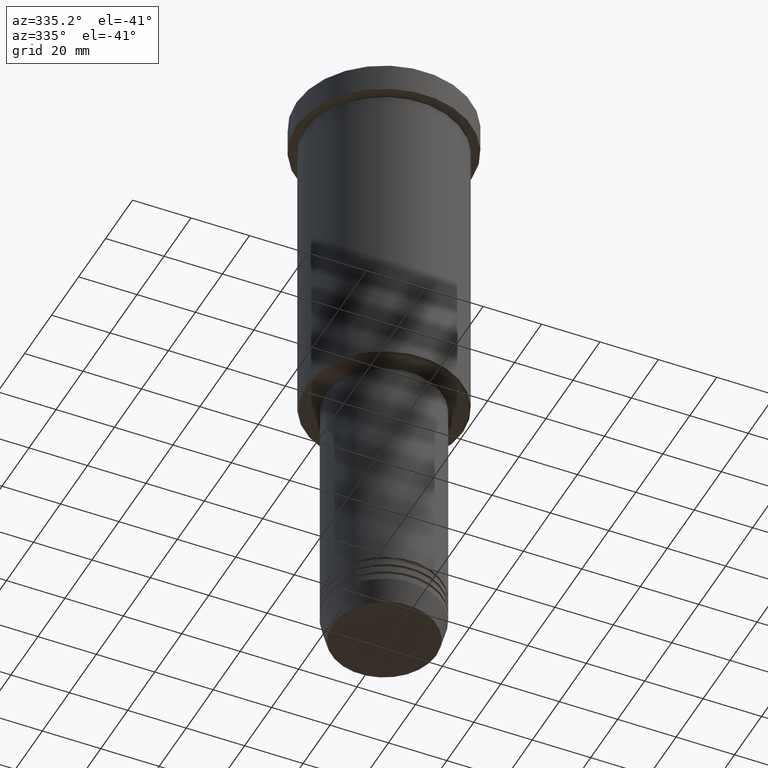
[diagram: clean part render]
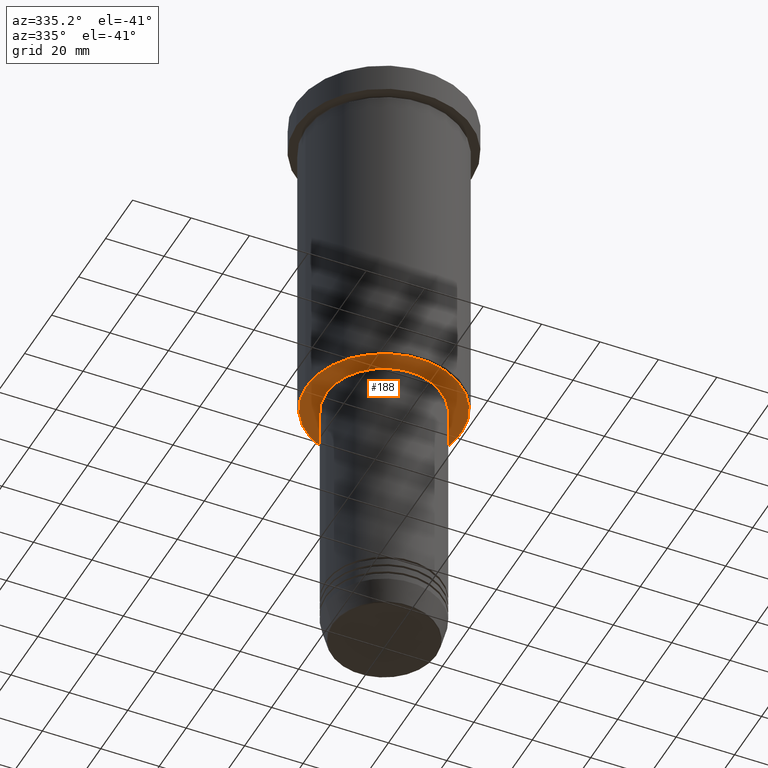
[diagram: same view with one face highlighted and labeled with its STEP entity id]
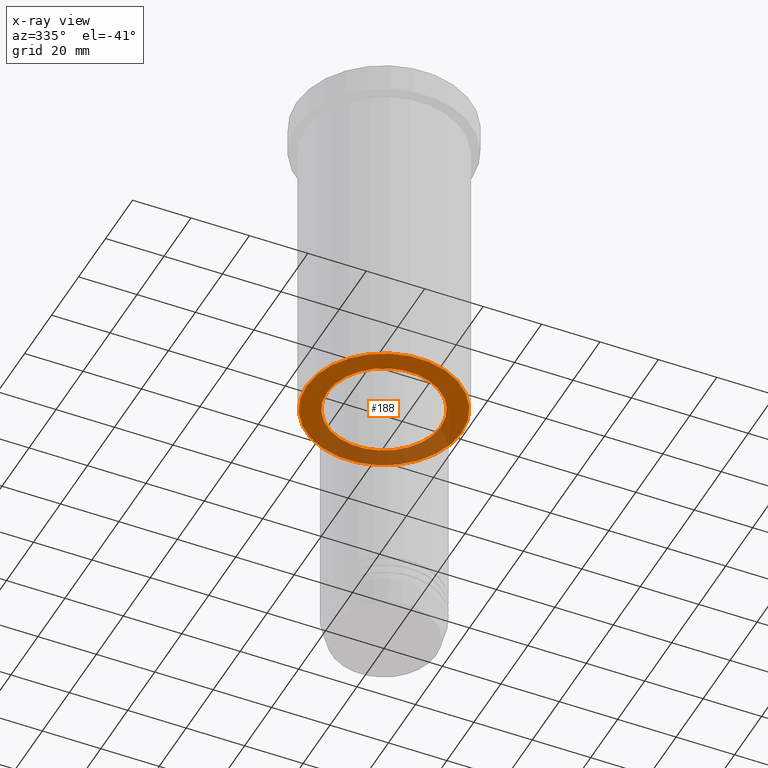
[diagram: x-ray of the same camera — body ghosted, the highlighted face saturated]
A machine part, auxiliary view. The second image highlights one B-rep face of the part: STEP entity #188.
The next image is the same camera in x-ray: the body ghosted, the highlighted face saturated — about 31% of this face is hidden behind the body in this view.
In plain terms, the highlighted planar face has unit normal (0, 0, -1).
Its self-contained STEP definition (entity closure, byte-faithful):
#38 = DIRECTION ( 'NONE',  ( -1.000000000000000000, 0.000000000000000000, -0.000000000000000000 ) ) ;
#79 = EDGE_CURVE ( 'NONE', #703, #900, #732, .T. ) ;
#100 = DIRECTION ( 'NONE',  ( 1.000000000000000000, 0.000000000000000000, 0.000000000000000000 ) ) ;
#106 = CIRCLE ( 'NONE', #1001, 26.49999999999999645 ) ;
#116 = EDGE_LOOP ( 'NONE', ( #415, #837 ) ) ;
#166 = CIRCLE ( 'NONE', #1100, 26.49999999999999645 ) ;
#188 = ADVANCED_FACE ( 'NONE', ( #593, #862 ), #1043, .T. ) ;
#251 = ORIENTED_EDGE ( 'NONE', *, *, #812, .T. ) ;
#253 = CARTESIAN_POINT ( 'NONE',  ( -19.50000000000000000, 2.388061258337338939E-15, -116.0000000000000000 ) ) ;
#314 = CARTESIAN_POINT ( 'NONE',  ( 0.000000000000000000, 27.00000000000000355, -116.0000000000000000 ) ) ;
#328 = DIRECTION ( 'NONE',  ( 0.000000000000000000, 0.000000000000000000, -1.000000000000000000 ) ) ;
#387 = EDGE_CURVE ( 'NONE', #1106, #787, #106, .T. ) ;
#415 = ORIENTED_EDGE ( 'NONE', *, *, #79, .T. ) ;
#417 = CARTESIAN_POINT ( 'NONE',  ( 19.50000000000000000, 0.000000000000000000, -116.0000000000000000 ) ) ;
#461 = DIRECTION ( 'NONE',  ( -0.000000000000000000, -0.000000000000000000, 1.000000000000000000 ) ) ;
#530 = EDGE_CURVE ( 'NONE', #900, #703, #1003, .T. ) ;
#566 = ORIENTED_EDGE ( 'NONE', *, *, #387, .T. ) ;
#593 = FACE_OUTER_BOUND ( 'NONE', #819, .T. ) ;
#615 = DIRECTION ( 'NONE',  ( -1.000000000000000000, 0.000000000000000000, 0.000000000000000000 ) ) ;
#683 = CARTESIAN_POINT ( 'NONE',  ( 26.49999999999999645, 0.000000000000000000, -116.0000000000000000 ) ) ;
#703 = VERTEX_POINT ( 'NONE', #417 ) ;
#732 = CIRCLE ( 'NONE', #1039, 19.50000000000000000 ) ;
#736 = DIRECTION ( 'NONE',  ( 1.000000000000000000, 0.000000000000000000, 0.000000000000000000 ) ) ;
#787 = VERTEX_POINT ( 'NONE', #1157 ) ;
#794 = DIRECTION ( 'NONE',  ( 0.000000000000000000, 0.000000000000000000, -1.000000000000000000 ) ) ;
#812 = EDGE_CURVE ( 'NONE', #787, #1106, #166, .T. ) ;
#819 = EDGE_LOOP ( 'NONE', ( #566, #251 ) ) ;
#830 = AXIS2_PLACEMENT_3D ( 'NONE', #314, #328, #38 ) ;
#837 = ORIENTED_EDGE ( 'NONE', *, *, #530, .T. ) ;
#849 = CARTESIAN_POINT ( 'NONE',  ( 0.000000000000000000, 0.000000000000000000, -116.0000000000000000 ) ) ;
#862 = FACE_BOUND ( 'NONE', #116, .T. ) ;
#896 = CARTESIAN_POINT ( 'NONE',  ( 0.000000000000000000, 0.000000000000000000, -116.0000000000000000 ) ) ;
#900 = VERTEX_POINT ( 'NONE', #253 ) ;
#910 = DIRECTION ( 'NONE',  ( 0.000000000000000000, 0.000000000000000000, -1.000000000000000000 ) ) ;
#929 = DIRECTION ( 'NONE',  ( -0.000000000000000000, -0.000000000000000000, 1.000000000000000000 ) ) ;
#943 = AXIS2_PLACEMENT_3D ( 'NONE', #849, #461, #736 ) ;
#999 = DIRECTION ( 'NONE',  ( -1.000000000000000000, 0.000000000000000000, 0.000000000000000000 ) ) ;
#1001 = AXIS2_PLACEMENT_3D ( 'NONE', #896, #910, #999 ) ;
#1003 = CIRCLE ( 'NONE', #943, 19.50000000000000000 ) ;
#1039 = AXIS2_PLACEMENT_3D ( 'NONE', #1126, #929, #100 ) ;
#1043 = PLANE ( 'NONE',  #830 ) ;
#1085 = CARTESIAN_POINT ( 'NONE',  ( 0.000000000000000000, 0.000000000000000000, -116.0000000000000000 ) ) ;
#1100 = AXIS2_PLACEMENT_3D ( 'NONE', #1085, #794, #615 ) ;
#1106 = VERTEX_POINT ( 'NONE', #683 ) ;
#1126 = CARTESIAN_POINT ( 'NONE',  ( 0.000000000000000000, 0.000000000000000000, -116.0000000000000000 ) ) ;
#1157 = CARTESIAN_POINT ( 'NONE',  ( -26.49999999999999645, 3.275930187719169552E-15, -116.0000000000000000 ) ) ;